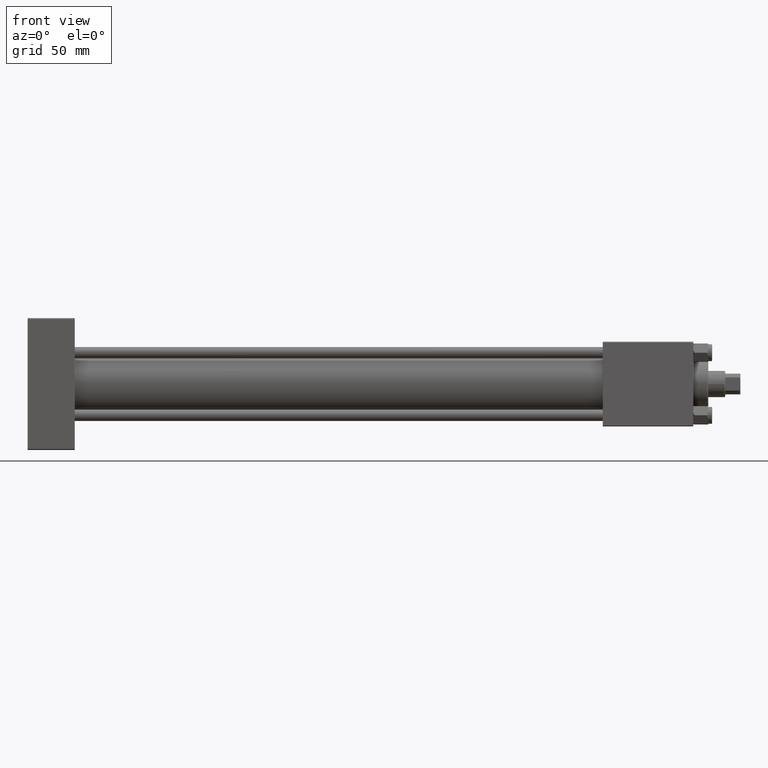
[diagram: clean part render]
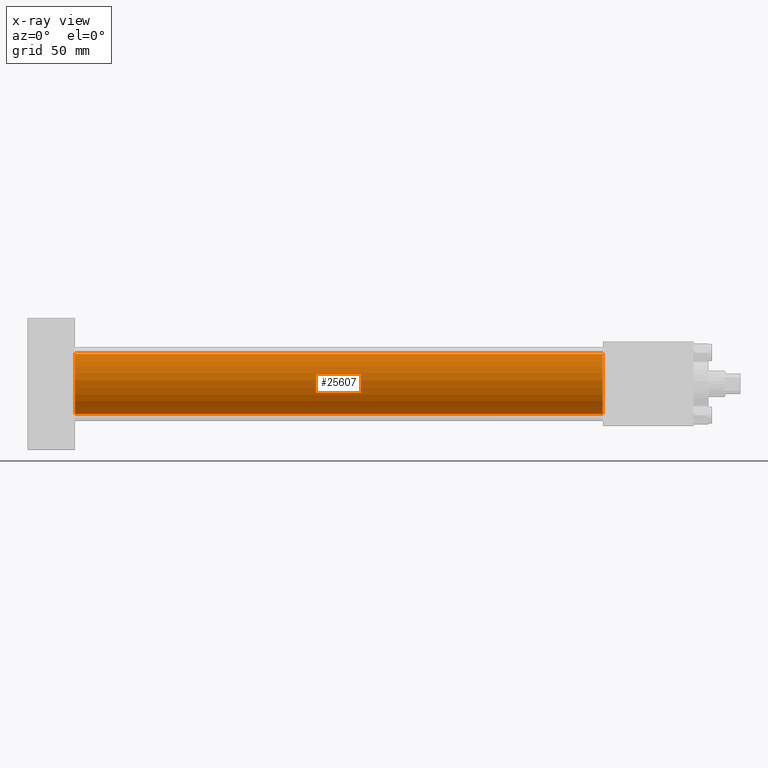
[diagram: x-ray — body ghosted, one internal face saturated and labeled with its STEP entity id]
A machine part, front view, then the same camera in x-ray: the body is ghosted and one INTERNAL B-rep face — a face not visible from any outside direction — is saturated and labeled: STEP entity #25607.
In plain terms, the highlighted cylindrical surface (edge-blend (fillet) strip) has radius 16 mm, axis along (-1, -0, -0).
Its self-contained STEP definition (entity closure, byte-faithful):
#58 = ORIENTED_EDGE ( 'NONE', *, *, #14859, .T. ) ;
#3596 = EDGE_LOOP ( 'NONE', ( #21964, #58, #35347, #15350 ) ) ;
#4330 = DIRECTION ( 'NONE',  ( 1.000000000000000000, 0.000000000000000000, 0.000000000000000000 ) ) ;
#5348 = DIRECTION ( 'NONE',  ( -1.000000000000000000, -0.000000000000000000, -0.000000000000000000 ) ) ;
#7007 = CIRCLE ( 'NONE', #28830, 16.00000000000000000 ) ;
#7409 = DIRECTION ( 'NONE',  ( -1.000000000000000000, -0.000000000000000000, -0.000000000000000000 ) ) ;
#8108 = DIRECTION ( 'NONE',  ( 1.000000000000000000, 0.000000000000000000, 0.000000000000000000 ) ) ;
#8944 = EDGE_CURVE ( 'NONE', #30113, #44423, #7007, .T. ) ;
#10823 = AXIS2_PLACEMENT_3D ( 'NONE', #45564, #5348, #42156 ) ;
#13753 = FACE_OUTER_BOUND ( 'NONE', #3596, .T. ) ;
#13820 = VECTOR ( 'NONE', #7409, 1000.000000000000000 ) ;
#14859 = EDGE_CURVE ( 'NONE', #24414, #44423, #20974, .T. ) ;
#15350 = ORIENTED_EDGE ( 'NONE', *, *, #50384, .F. ) ;
#17809 = VERTEX_POINT ( 'NONE', #37541 ) ;
#18739 = CARTESIAN_POINT ( 'NONE',  ( 25.00000000000000000, -6.426503353294456087E-16, -16.00000000000000000 ) ) ;
#19813 = CIRCLE ( 'NONE', #48323, 16.00000000000000000 ) ;
#20023 = LINE ( 'NONE', #36307, #13820 ) ;
#20218 = CARTESIAN_POINT ( 'NONE',  ( 305.0000000000000568, -2.602085213965210642E-15, 0.000000000000000000 ) ) ;
#20454 = CARTESIAN_POINT ( 'NONE',  ( 305.0000000000000568, -6.426503353294456087E-16, -16.00000000000000000 ) ) ;
#20974 = LINE ( 'NONE', #20454, #26522 ) ;
#21964 = ORIENTED_EDGE ( 'NONE', *, *, #50521, .T. ) ;
#22388 = CARTESIAN_POINT ( 'NONE',  ( 25.00000000000000000, -2.602085213965210642E-15, 16.00000000000000000 ) ) ;
#23641 = DIRECTION ( 'NONE',  ( 0.000000000000000000, 0.000000000000000000, -1.000000000000000000 ) ) ;
#24414 = VERTEX_POINT ( 'NONE', #26959 ) ;
#25607 = ADVANCED_FACE ( 'NONE', ( #13753 ), #26386, .F. ) ;
#26386 = CYLINDRICAL_SURFACE ( 'NONE', #10823, 16.00000000000000000 ) ;
#26522 = VECTOR ( 'NONE', #49333, 1000.000000000000000 ) ;
#26959 = CARTESIAN_POINT ( 'NONE',  ( 305.0000000000000568, -6.426503353294456087E-16, -16.00000000000000000 ) ) ;
#28830 = AXIS2_PLACEMENT_3D ( 'NONE', #30957, #4330, #44808 ) ;
#30113 = VERTEX_POINT ( 'NONE', #22388 ) ;
#30957 = CARTESIAN_POINT ( 'NONE',  ( 25.00000000000000000, -2.602085213965210642E-15, 0.000000000000000000 ) ) ;
#35347 = ORIENTED_EDGE ( 'NONE', *, *, #8944, .F. ) ;
#36307 = CARTESIAN_POINT ( 'NONE',  ( 305.0000000000000568, -2.602085213965210642E-15, 16.00000000000000000 ) ) ;
#37541 = CARTESIAN_POINT ( 'NONE',  ( 305.0000000000000568, -2.602085213965210642E-15, 16.00000000000000000 ) ) ;
#42156 = DIRECTION ( 'NONE',  ( 0.000000000000000000, 0.000000000000000000, 1.000000000000000000 ) ) ;
#44423 = VERTEX_POINT ( 'NONE', #18739 ) ;
#44808 = DIRECTION ( 'NONE',  ( 0.000000000000000000, 0.000000000000000000, -1.000000000000000000 ) ) ;
#45564 = CARTESIAN_POINT ( 'NONE',  ( 305.0000000000000568, -2.602085213965210642E-15, 0.000000000000000000 ) ) ;
#48323 = AXIS2_PLACEMENT_3D ( 'NONE', #20218, #8108, #23641 ) ;
#49333 = DIRECTION ( 'NONE',  ( -1.000000000000000000, -0.000000000000000000, -0.000000000000000000 ) ) ;
#50384 = EDGE_CURVE ( 'NONE', #17809, #30113, #20023, .T. ) ;
#50521 = EDGE_CURVE ( 'NONE', #17809, #24414, #19813, .T. ) ;